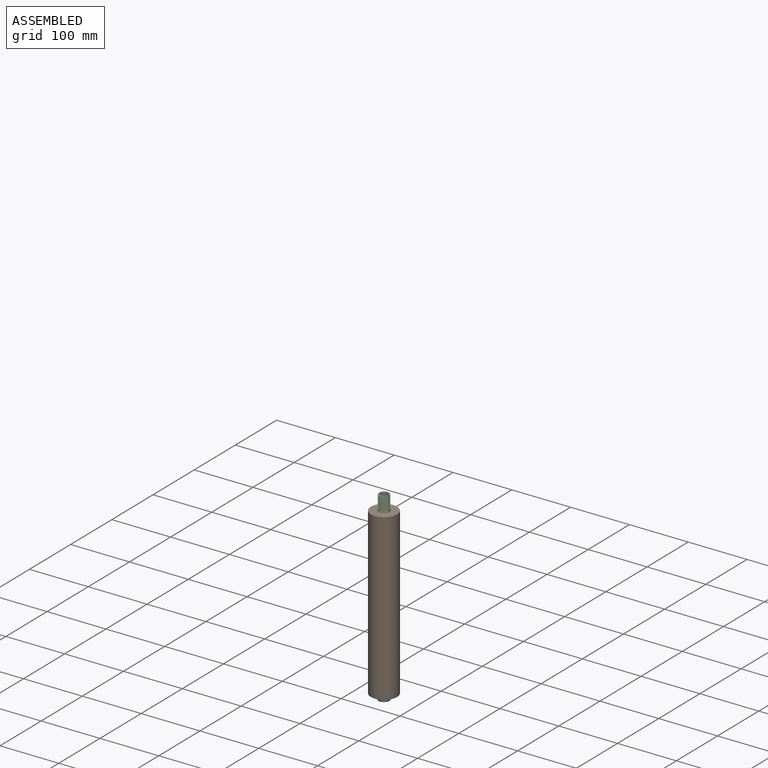
[diagram: assembled view]
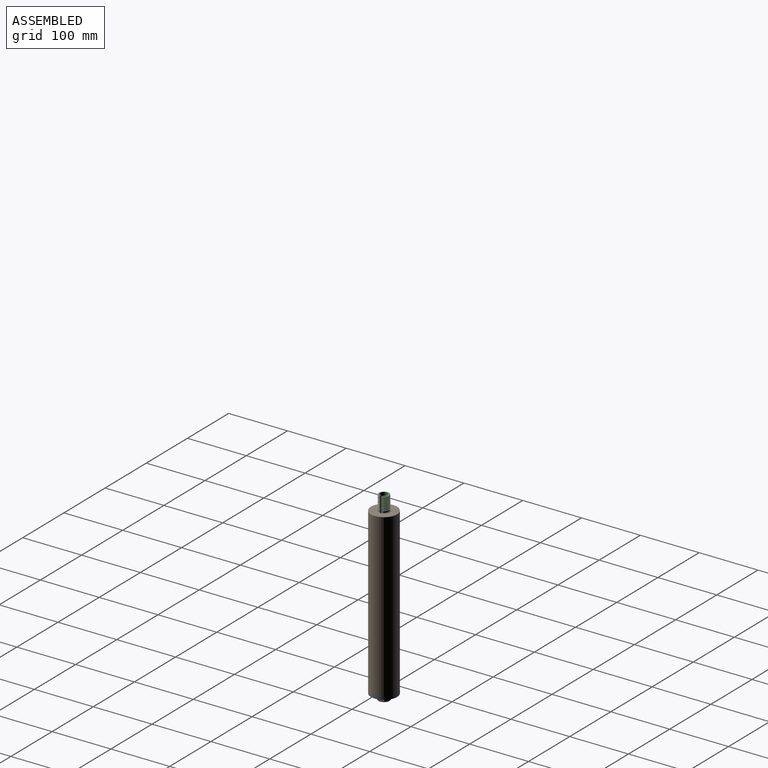
[diagram: assembled view, second angle]
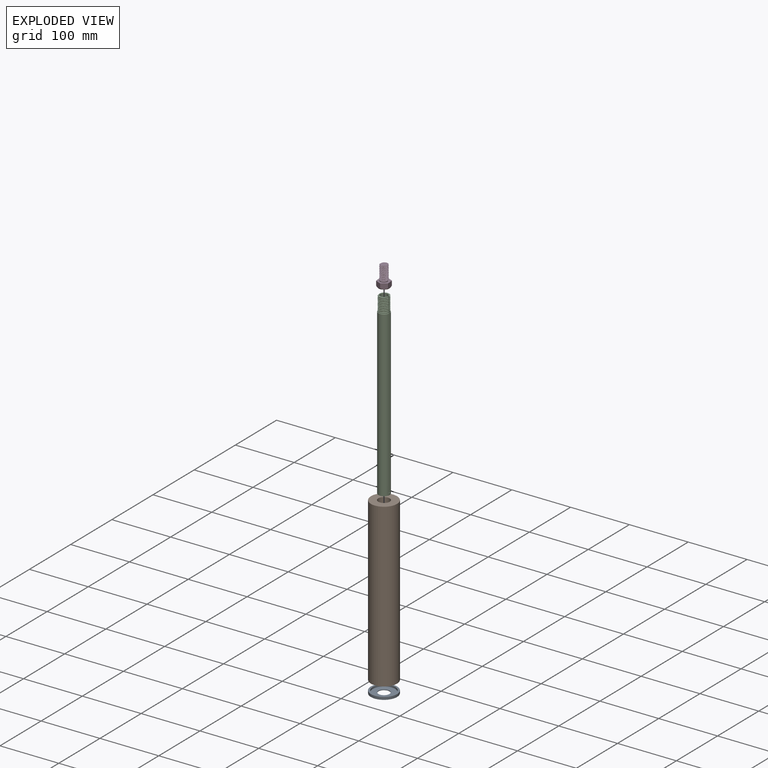
[diagram: exploded view]
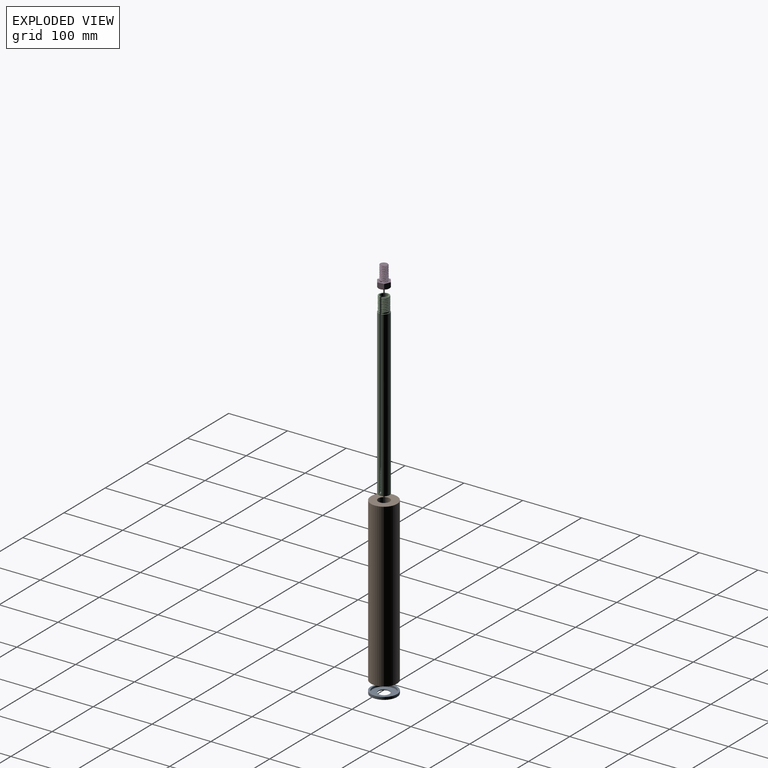
[diagram: exploded view, second angle]
ASSEMBLY  parts=4 mates=3
PART A: 6 faces, bbox 44.5x44.5x4.4 mm
  f0: cylinder r=19.18mm len=38.36mm, axis (0,0,-1), area 382.6mm2, adj f2,f3
  f1: cylinder r=22.23mm len=44.45mm, axis (0,0,-1), area 620.7mm2, adj f2,f4
  f2: plane 44.45x44.45mm, normal (0,0,1), area 396mm2, adj f0,f1
  f3: plane 38.36x38.36mm, normal (0,0,1), area 870.7mm2, adj f0,f5
  f4: plane 44.45x44.45mm, normal (0,0,-1), area 1266.8mm2, adj f1,f5
  f5: cylinder r=9.53mm len=19.05mm, axis (0,0,-1), area 76mm2, adj f3,f4
PART B: 4 faces, bbox 44.5x44.5x276.2 mm
  f0: plane 44.45x44.45mm, normal (0,0,1), area 1251.4mm2, adj f2,f3
  f1: plane 44.45x44.45mm, normal (0,0,-1), area 1251.4mm2, adj f2,f3
  f2: cylinder r=9.78mm len=276.23mm, axis (0,0,-1), area 16972.2mm2, adj f0,f1
  f3: cylinder r=22.23mm len=276.23mm, axis (0,0,-1), area 38573.1mm2, adj f0,f1
PART C: 92 faces, bbox 19.9x21.4x308.1 mm
  f0: cylinder r=9.53mm len=279.4mm, axis (0,0,-1), area 16017.6mm2, adj f20,f85,f89,f90,f91
  f1: plane 17.68x17.58mm, normal (0,0,1), area 87mm2, adj f2,f40,f86,f88,f89,f91
  f2: cylinder r=6.54mm len=268.6mm, axis (0,0,-1), area 10316mm2, adj f1,f67,f89,f91
  f3: cylinder r=6.54mm len=13.08mm, axis (0,0,-1), area 6.8mm2, adj f66,f84,f89,f91
  f4: cylinder r=6.54mm len=13.08mm, axis (0,0,-1), area 6.8mm2, adj f65,f83,f89,f91
  f5: cylinder r=6.54mm len=13.08mm, axis (0,0,-1), area 6.8mm2, adj f64,f82,f89,f91
  f6: cylinder r=6.54mm len=13.08mm, axis (0,0,-1), area 6.8mm2, adj f63,f81,f89,f91
  f7: cylinder r=6.54mm len=13.08mm, axis (0,0,-1), area 6.8mm2, adj f62,f80,f89,f91
  f8: cylinder r=6.54mm len=13.08mm, axis (0,0,-1), area 6.8mm2, adj f61,f79,f89,f91
  f9: cylinder r=6.54mm len=13.08mm, axis (0,0,-1), area 6.8mm2, adj f60,f78,f89,f91
  f10: cylinder r=6.54mm len=13.08mm, axis (0,0,-1), area 6.8mm2, adj f59,f77,f89,f91
  f11: cylinder r=6.54mm len=13.08mm, axis (0,0,-1), area 6.8mm2, adj f58,f76,f89,f91
  f12: cylinder r=6.54mm len=13.08mm, axis (0,0,-1), area 6.8mm2, adj f57,f75,f89,f91
  f13: cylinder r=6.54mm len=13.08mm, axis (0,0,-1), area 6.8mm2, adj f56,f74,f89,f91
  f14: cylinder r=6.54mm len=13.08mm, axis (0,0,-1), area 6.8mm2, adj f55,f73,f89,f91
  f15: cylinder r=6.54mm len=13.08mm, axis (0,0,-1), area 6.8mm2, adj f54,f72,f89,f91
  f16: cylinder r=6.54mm len=13.08mm, axis (0,0,-1), area 6.8mm2, adj f53,f71,f89,f91
  f17: cylinder r=6.54mm len=13.08mm, axis (0,0,-1), area 6.8mm2, adj f52,f70,f89,f91
  f18: cylinder r=6.54mm len=13.08mm, axis (0,0,-1), area 6.8mm2, adj f51,f69,f89,f91
  f19: cylinder r=6.54mm len=13.08mm, axis (0,0,-1), area 18.1mm2, adj f50,f68,f85,f89
  f20: cone r=8.89mm half-angle=45deg, axis (0,0,-1), area 49.7mm2, adj f0,f21,f22,f89,f91
  f21: cylinder r=8.89mm len=17.78mm, axis (0,0,1), area 37.6mm2, adj f20,f39,f89
  f22: cylinder r=8.89mm len=17.78mm, axis (0,0,1), area 44mm2, adj f20,f38,f49,f87,f89,f91
  f23: cylinder r=8.89mm len=17.78mm, axis (0,0,1), area 20.3mm2, adj f37,f48,f89,f91
  f24: cylinder r=8.89mm len=17.78mm, axis (0,0,1), area 20.3mm2, adj f36,f47,f89,f91
  f25: cylinder r=8.89mm len=17.78mm, axis (0,0,1), area 20.3mm2, adj f35,f46,f89,f91
  f26: cylinder r=8.89mm len=17.78mm, axis (0,0,1), area 20.3mm2, adj f34,f45,f89,f91
  f27: cylinder r=8.89mm len=17.78mm, axis (0,0,1), area 20.3mm2, adj f33,f44,f89,f91
  f28: cylinder r=8.89mm len=17.78mm, axis (0,0,1), area 20.3mm2, adj f32,f43,f89,f91
  f29: cylinder r=8.89mm len=17.78mm, axis (0,0,1), area 20.3mm2, adj f31,f42,f89,f91
  f30: cylinder r=8.89mm len=17.78mm, axis (0,0,1), area 20.3mm2, adj f40,f41,f89,f91
  f31: bspline ~20.53x17.78mm, area 71.3mm2, adj f29,f41,f89,f91
  f32: bspline ~20.53x17.78mm, area 71.3mm2, adj f28,f42,f89,f91
  f33: bspline ~20.53x17.78mm, area 71.3mm2, adj f27,f43,f89,f91
  f34: bspline ~20.53x17.78mm, area 71.3mm2, adj f26,f44,f89,f91
  f35: bspline ~20.53x17.78mm, area 71.3mm2, adj f25,f45,f89,f91
  f36: bspline ~20.53x17.78mm, area 71.3mm2, adj f24,f46,f89,f91
  f37: bspline ~20.53x17.78mm, area 71.3mm2, adj f23,f47,f89,f91
  f38: bspline ~20.53x17.78mm, area 71.3mm2, adj f22,f48,f89,f91
  f39: bspline ~20.53x17.78mm, area 54.4mm2, adj f21,f49,f87,f89
  f40: bspline ~20.53x17.78mm, area 57.4mm2, adj f1,f30,f88,f89,f91
  f41: bspline ~20.53x17.78mm, area 71.4mm2, adj f30,f31,f89,f91
  f42: bspline ~20.53x17.78mm, area 71.4mm2, adj f29,f32,f89,f91
  f43: bspline ~20.53x17.78mm, area 71.4mm2, adj f28,f33,f89,f91
  f44: bspline ~20.53x17.78mm, area 71.4mm2, adj f27,f34,f89,f91
  f45: bspline ~20.53x17.78mm, area 71.4mm2, adj f26,f35,f89,f91
  f46: bspline ~20.53x17.78mm, area 71.4mm2, adj f25,f36,f89,f91
  f47: bspline ~20.53x17.78mm, area 71.4mm2, adj f24,f37,f89,f91
  f48: bspline ~20.53x17.78mm, area 71.4mm2, adj f23,f38,f89,f91
  f49: bspline ~20.53x17.78mm, area 54.4mm2, adj f22,f39,f87,f89
  f50: bspline ~17.55x15.2mm, area 137.5mm2, adj f19,f68,f85,f89
  f51: bspline ~17.55x15.2mm, area 57.9mm2, adj f18,f68,f89,f91
  f52: bspline ~17.55x15.2mm, area 57.9mm2, adj f17,f69,f89,f91
  f53: bspline ~17.55x15.2mm, area 57.9mm2, adj f16,f70,f89,f91
  f54: bspline ~17.55x15.2mm, area 57.9mm2, adj f15,f71,f89,f91
  f55: bspline ~17.55x15.2mm, area 57.9mm2, adj f14,f72,f89,f91
  f56: bspline ~17.55x15.2mm, area 57.9mm2, adj f13,f73,f89,f91
  f57: bspline ~17.55x15.2mm, area 57.9mm2, adj f12,f74,f89,f91
  f58: bspline ~17.55x15.2mm, area 57.9mm2, adj f11,f75,f89,f91
  f59: bspline ~17.55x15.2mm, area 57.9mm2, adj f10,f76,f89,f91
  f60: bspline ~17.55x15.2mm, area 57.9mm2, adj f9,f77,f89,f91
  f61: bspline ~17.55x15.2mm, area 57.9mm2, adj f8,f78,f89,f91
  f62: bspline ~17.55x15.2mm, area 57.9mm2, adj f7,f79,f89,f91
  f63: bspline ~17.55x15.2mm, area 57.9mm2, adj f6,f80,f89,f91
  f64: bspline ~17.55x15.2mm, area 57.9mm2, adj f5,f81,f89,f91
  f65: bspline ~17.55x15.2mm, area 57.9mm2, adj f4,f82,f89,f91
  f66: bspline ~17.55x15.2mm, area 57.9mm2, adj f3,f83,f89,f91
  f67: bspline ~17.55x15.2mm, area 57.9mm2, adj f2,f84,f89,f91
  f68: bspline ~17.55x15.2mm, area 168.5mm2, adj f19,f50,f51,f85,f89,f90,f91
  f69: bspline ~17.55x15.2mm, area 57.9mm2, adj f18,f52,f89,f91
  f70: bspline ~17.55x15.2mm, area 57.9mm2, adj f17,f53,f89,f91
  f71: bspline ~17.55x15.2mm, area 57.9mm2, adj f16,f54,f89,f91
  f72: bspline ~17.55x15.2mm, area 57.9mm2, adj f15,f55,f89,f91
  f73: bspline ~17.55x15.2mm, area 57.9mm2, adj f14,f56,f89,f91
  f74: bspline ~17.55x15.2mm, area 57.9mm2, adj f13,f57,f89,f91
  f75: bspline ~17.55x15.2mm, area 57.9mm2, adj f12,f58,f89,f91
  f76: bspline ~17.55x15.2mm, area 57.9mm2, adj f11,f59,f89,f91
  f77: bspline ~17.55x15.2mm, area 57.9mm2, adj f10,f60,f89,f91
  f78: bspline ~17.55x15.2mm, area 57.9mm2, adj f9,f61,f89,f91
  f79: bspline ~17.55x15.2mm, area 57.9mm2, adj f8,f62,f89,f91
  f80: bspline ~17.55x15.2mm, area 57.9mm2, adj f7,f63,f89,f91
  f81: bspline ~17.55x15.2mm, area 57.9mm2, adj f6,f64,f89,f91
  f82: bspline ~17.55x15.2mm, area 57.9mm2, adj f5,f65,f89,f91
  f83: bspline ~17.55x15.2mm, area 57.9mm2, adj f4,f66,f89,f91
  f84: bspline ~17.55x15.2mm, area 57.9mm2, adj f3,f67,f89,f91
  f85: plane 19.89x19.89mm, normal (0,0,-1), area 129.8mm2, adj f0,f19,f50,f68
  f86: cylinder r=8.89mm len=5.88mm, axis (0,0,1), area 1.1mm2, adj f1,f88,f91
  f87: plane 2.16x0.91mm, normal (-1,0,0), area 1mm2, adj f22,f39,f49
  f88: bspline ~17.96x17.78mm, area 25mm2, adj f1,f40,f86,f91
  f89: plane 301.64x3.04mm, normal (0,1,0), area 869.8mm2, adj f0,f1,f2,f3,f4,f5,f6,f7
  f90: plane 3.12x2.56mm, normal (0,0,1), area 7.4mm2, adj f0,f68,f89,f91
  f91: plane 301.64x3.04mm, normal (0,-1,0), area 870.8mm2, adj f0,f1,f2,f3,f4,f5,f6,f7
PART D: 14 faces, bbox 23x23x37.1 mm
  f0: cylinder r=6.54mm len=25.4mm, axis (0,0,-1), area -39mm2, adj f7,f10,f11,f12,f13
  f1: plane 9.22x8.91mm, normal (-0.59,0.81,0), area 94.7mm2, adj f2,f6,f7,f8
  f2: plane 10.04x9.22mm, normal (0.41,0.91,0), area 94.7mm2, adj f1,f3,f7,f8
  f3: plane 10.94x9.22mm, normal (0.99,0.1,0), area 94.7mm2, adj f2,f4,f7,f8
  f4: plane 9.22x8.91mm, normal (0.59,-0.81,0), area 94.7mm2, adj f3,f5,f7,f8
  f5: plane 10.04x9.22mm, normal (-0.41,-0.91,0), area 94.7mm2, adj f4,f6,f7,f8
  f6: plane 10.94x9.22mm, normal (-0.99,-0.1,0), area 94.7mm2, adj f1,f5,f7,f8
  f7: plane 21.88x20.07mm, normal (0,0,1), area 179.9mm2, adj f0,f1,f2,f3,f4,f5,f6
  f8: revolved ~21.99x21.99mm, area 239.9mm2, adj f1,f2,f3,f4,f5,f6,f9
  f9: plane 18.55x18.55mm, normal (0,0,-1), area 270.2mm2, adj f8
  f10: plane 12.94x12.92mm, normal (0,0,1), area 110.5mm2, adj f0,f12,f13
  f11: plane 1.78x1.37mm, normal (0,1,0), area 1.2mm2, adj f0,f12,f13
  f12: bspline ~26.29x15.1mm, area 762.1mm2, adj f0,f10,f11,f13
  f13: bspline ~25.64x15.1mm, area 742.1mm2, adj f0,f10,f11,f12
PLACE A t=(-143.71,23.79,12.59)mm
PLACE B t=(-143.71,23.79,12.59)mm
PLACE C t=(-143.71,23.79,12.59)mm
PLACE D t=(-143.71,23.79,12.59)mm
MATE fastened C.f0 <-> A.f0  axis (0,0,-1) through (-143.71,23.79,12.59)mm
MATE fastened B.f2 <-> A.f1  axis (0,0,-1) through (-143.71,23.79,15.76)mm
MATE fastened D.f0 <-> A.f1  axis (0,0,1) through (-143.71,23.79,11.32)mm
